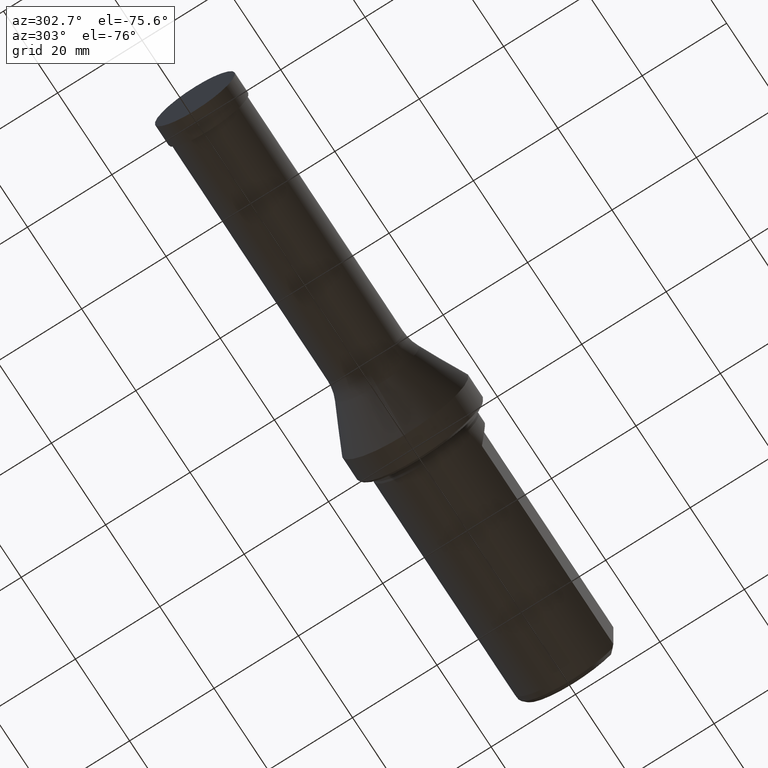
[diagram: clean part render]
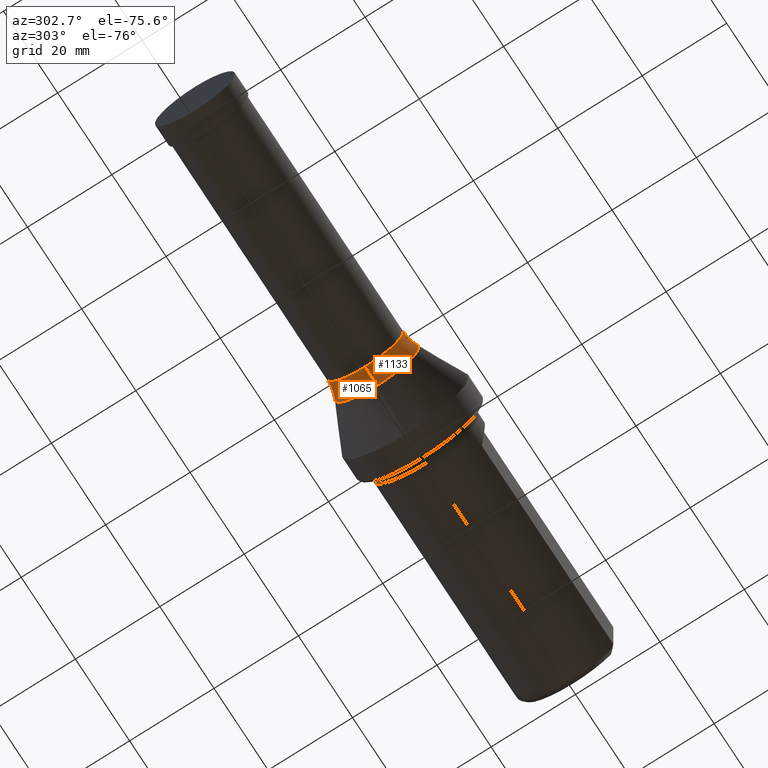
[diagram: same view with one multi-face feature highlighted, each face labeled with its STEP entity id]
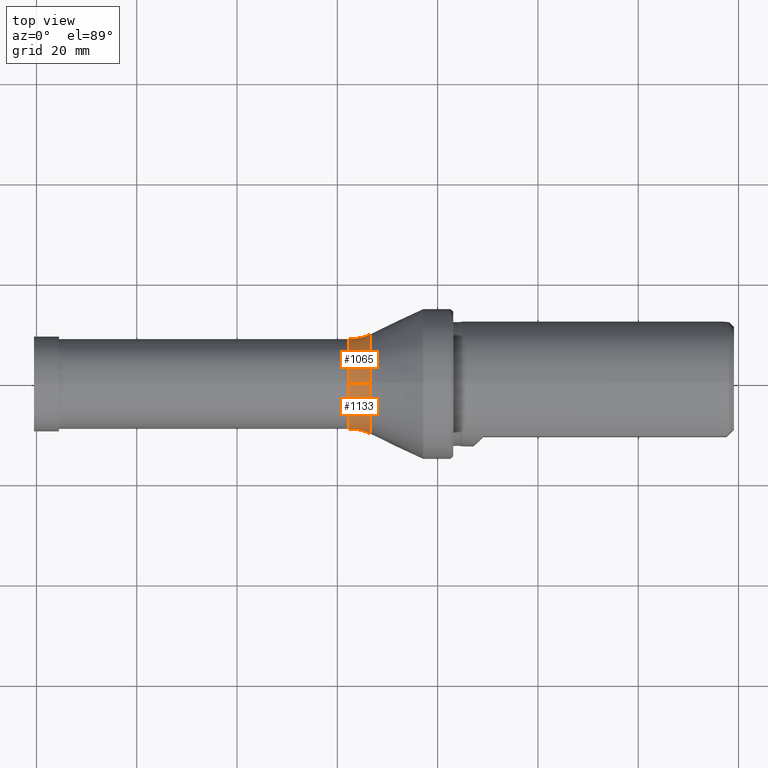
[diagram: same view with one multi-face feature highlighted, each face labeled with its STEP entity id]
A machine part, auxiliary view. The highlighted faces form ONE feature: a constant-radius fillet chain: 2 tangent blend faces with common blend radius 10 mm. The faces share edges in the B-rep.
A second angle (top view) of the same feature is appended — it is thin or edge-on in the first view.
Their STEP definitions:
[1] entity #1065 (Torus):
#15 = AXIS2_PLACEMENT_3D ( 'NONE', #214, #132, #462 ) ;
#25 = AXIS2_PLACEMENT_3D ( 'NONE', #685, #691, #589 ) ;
#122 = CARTESIAN_POINT ( 'NONE',  ( 62.32800000000001000, 0.0000000000000000000, 0.0000000000000000000 ) ) ;
#130 = EDGE_CURVE ( 'NONE', #723, #415, #496, .T. ) ;
#132 = DIRECTION ( 'NONE',  ( -1.000000000000000000, -0.0000000000000000000, -0.0000000000000000000 ) ) ;
#164 = CARTESIAN_POINT ( 'NONE',  ( 62.32800000000001000, 0.0000000000000000000, 19.00000000000000400 ) ) ;
#168 = VERTEX_POINT ( 'NONE', #764 ) ;
#214 = CARTESIAN_POINT ( 'NONE',  ( 66.65655910590565700, 0.0000000000000000000, 0.0000000000000000000 ) ) ;
#220 = CARTESIAN_POINT ( 'NONE',  ( 66.65655910590565700, 1.222854991241783800E-015, -9.985368778109599200 ) ) ;
#331 = ORIENTED_EDGE ( 'NONE', *, *, #1161, .T. ) ;
#356 = AXIS2_PLACEMENT_3D ( 'NONE', #850, #808, #1141 ) ;
#362 = EDGE_CURVE ( 'NONE', #1187, #168, #544, .T. ) ;
#415 = VERTEX_POINT ( 'NONE', #220 ) ;
#453 = DIRECTION ( 'NONE',  ( 0.0000000000000000000, 0.0000000000000000000, 1.000000000000000000 ) ) ;
#462 = DIRECTION ( 'NONE',  ( 0.0000000000000000000, 0.0000000000000000000, 1.000000000000000000 ) ) ;
#474 = CARTESIAN_POINT ( 'NONE',  ( 62.32800000000001000, 0.0000000000000000000, 9.000000000000000000 ) ) ;
#496 = CIRCLE ( 'NONE', #25, 10.00000000000000000 ) ;
#518 = CIRCLE ( 'NONE', #15, 9.985368778109599200 ) ;
#544 = CIRCLE ( 'NONE', #1080, 10.00000000000000000 ) ;
#552 = EDGE_CURVE ( 'NONE', #1187, #723, #631, .T. ) ;
#589 = DIRECTION ( 'NONE',  ( 0.0000000000000000000, -1.224646799147353200E-016, 1.000000000000000000 ) ) ;
#598 = DIRECTION ( 'NONE',  ( -1.000000000000000000, -0.0000000000000000000, -0.0000000000000000000 ) ) ;
#631 = CIRCLE ( 'NONE', #356, 9.000000000000000000 ) ;
#677 = CARTESIAN_POINT ( 'NONE',  ( 62.32800000000001000, 1.102182119232617700E-015, -9.000000000000000000 ) ) ;
#685 = CARTESIAN_POINT ( 'NONE',  ( 62.32800000000001000, 2.326828918379971400E-015, -19.00000000000000400 ) ) ;
#691 = DIRECTION ( 'NONE',  ( -0.0000000000000000000, 1.000000000000000000, 1.224646799147353200E-016 ) ) ;
#723 = VERTEX_POINT ( 'NONE', #677 ) ;
#764 = CARTESIAN_POINT ( 'NONE',  ( 66.65655910590565700, 0.0000000000000000000, 9.985368778109599200 ) ) ;
#808 = DIRECTION ( 'NONE',  ( -1.000000000000000000, -0.0000000000000000000, -0.0000000000000000000 ) ) ;
#820 = TOROIDAL_SURFACE ( 'NONE', #925, 19.00000000000000400, 10.00000000000000000 ) ;
#833 = ORIENTED_EDGE ( 'NONE', *, *, #130, .F. ) ;
#850 = CARTESIAN_POINT ( 'NONE',  ( 62.32800000000001000, 0.0000000000000000000, 0.0000000000000000000 ) ) ;
#864 = FACE_OUTER_BOUND ( 'NONE', #901, .T. ) ;
#901 = EDGE_LOOP ( 'NONE', ( #833, #1223, #1159, #331 ) ) ;
#902 = DIRECTION ( 'NONE',  ( 0.0000000000000000000, 0.0000000000000000000, -1.000000000000000000 ) ) ;
#925 = AXIS2_PLACEMENT_3D ( 'NONE', #122, #598, #453 ) ;
#949 = DIRECTION ( 'NONE',  ( 0.0000000000000000000, -1.000000000000000000, 0.0000000000000000000 ) ) ;
#1065 = ADVANCED_FACE ( 'NONE', ( #864 ), #820, .F. ) ;
#1080 = AXIS2_PLACEMENT_3D ( 'NONE', #164, #949, #902 ) ;
#1141 = DIRECTION ( 'NONE',  ( 0.0000000000000000000, 0.0000000000000000000, 1.000000000000000000 ) ) ;
#1159 = ORIENTED_EDGE ( 'NONE', *, *, #362, .T. ) ;
#1161 = EDGE_CURVE ( 'NONE', #168, #415, #518, .T. ) ;
#1187 = VERTEX_POINT ( 'NONE', #474 ) ;
#1223 = ORIENTED_EDGE ( 'NONE', *, *, #552, .F. ) ;
[2] entity #1133 (Torus):
#25 = AXIS2_PLACEMENT_3D ( 'NONE', #685, #691, #589 ) ;
#54 = CIRCLE ( 'NONE', #606, 9.985368778109599200 ) ;
#81 = ORIENTED_EDGE ( 'NONE', *, *, #362, .F. ) ;
#130 = EDGE_CURVE ( 'NONE', #723, #415, #496, .T. ) ;
#164 = CARTESIAN_POINT ( 'NONE',  ( 62.32800000000001000, 0.0000000000000000000, 19.00000000000000400 ) ) ;
#167 = DIRECTION ( 'NONE',  ( -1.000000000000000000, -0.0000000000000000000, -0.0000000000000000000 ) ) ;
#168 = VERTEX_POINT ( 'NONE', #764 ) ;
#220 = CARTESIAN_POINT ( 'NONE',  ( 66.65655910590565700, 1.222854991241783800E-015, -9.985368778109599200 ) ) ;
#232 = CIRCLE ( 'NONE', #400, 9.000000000000000000 ) ;
#269 = DIRECTION ( 'NONE',  ( -1.000000000000000000, -0.0000000000000000000, -0.0000000000000000000 ) ) ;
#362 = EDGE_CURVE ( 'NONE', #1187, #168, #544, .T. ) ;
#365 = EDGE_LOOP ( 'NONE', ( #755, #1217, #883, #81 ) ) ;
#371 = EDGE_CURVE ( 'NONE', #723, #1187, #232, .T. ) ;
#400 = AXIS2_PLACEMENT_3D ( 'NONE', #607, #167, #584 ) ;
#415 = VERTEX_POINT ( 'NONE', #220 ) ;
#474 = CARTESIAN_POINT ( 'NONE',  ( 62.32800000000001000, 0.0000000000000000000, 9.000000000000000000 ) ) ;
#496 = CIRCLE ( 'NONE', #25, 10.00000000000000000 ) ;
#530 = FACE_OUTER_BOUND ( 'NONE', #365, .T. ) ;
#542 = DIRECTION ( 'NONE',  ( -1.000000000000000000, -0.0000000000000000000, -0.0000000000000000000 ) ) ;
#544 = CIRCLE ( 'NONE', #1080, 10.00000000000000000 ) ;
#583 = TOROIDAL_SURFACE ( 'NONE', #1145, 19.00000000000000400, 10.00000000000000000 ) ;
#584 = DIRECTION ( 'NONE',  ( 0.0000000000000000000, 0.0000000000000000000, 1.000000000000000000 ) ) ;
#589 = DIRECTION ( 'NONE',  ( 0.0000000000000000000, -1.224646799147353200E-016, 1.000000000000000000 ) ) ;
#606 = AXIS2_PLACEMENT_3D ( 'NONE', #748, #542, #615 ) ;
#607 = CARTESIAN_POINT ( 'NONE',  ( 62.32800000000001000, 0.0000000000000000000, 0.0000000000000000000 ) ) ;
#615 = DIRECTION ( 'NONE',  ( 0.0000000000000000000, 0.0000000000000000000, 1.000000000000000000 ) ) ;
#677 = CARTESIAN_POINT ( 'NONE',  ( 62.32800000000001000, 1.102182119232617700E-015, -9.000000000000000000 ) ) ;
#685 = CARTESIAN_POINT ( 'NONE',  ( 62.32800000000001000, 2.326828918379971400E-015, -19.00000000000000400 ) ) ;
#691 = DIRECTION ( 'NONE',  ( -0.0000000000000000000, 1.000000000000000000, 1.224646799147353200E-016 ) ) ;
#723 = VERTEX_POINT ( 'NONE', #677 ) ;
#748 = CARTESIAN_POINT ( 'NONE',  ( 66.65655910590565700, 0.0000000000000000000, 0.0000000000000000000 ) ) ;
#752 = EDGE_CURVE ( 'NONE', #415, #168, #54, .T. ) ;
#755 = ORIENTED_EDGE ( 'NONE', *, *, #371, .F. ) ;
#764 = CARTESIAN_POINT ( 'NONE',  ( 66.65655910590565700, 0.0000000000000000000, 9.985368778109599200 ) ) ;
#830 = CARTESIAN_POINT ( 'NONE',  ( 62.32800000000001000, 0.0000000000000000000, 0.0000000000000000000 ) ) ;
#883 = ORIENTED_EDGE ( 'NONE', *, *, #752, .T. ) ;
#902 = DIRECTION ( 'NONE',  ( 0.0000000000000000000, 0.0000000000000000000, -1.000000000000000000 ) ) ;
#949 = DIRECTION ( 'NONE',  ( 0.0000000000000000000, -1.000000000000000000, 0.0000000000000000000 ) ) ;
#1080 = AXIS2_PLACEMENT_3D ( 'NONE', #164, #949, #902 ) ;
#1133 = ADVANCED_FACE ( 'NONE', ( #530 ), #583, .F. ) ;
#1145 = AXIS2_PLACEMENT_3D ( 'NONE', #830, #269, #1196 ) ;
#1187 = VERTEX_POINT ( 'NONE', #474 ) ;
#1196 = DIRECTION ( 'NONE',  ( 0.0000000000000000000, 0.0000000000000000000, 1.000000000000000000 ) ) ;
#1217 = ORIENTED_EDGE ( 'NONE', *, *, #130, .T. ) ;